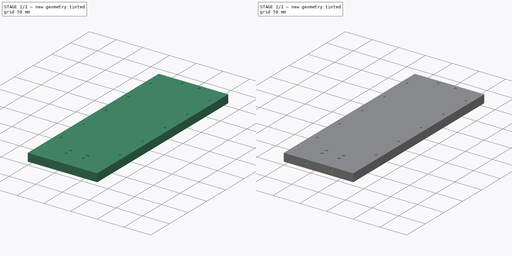
[diagram: build sequence overview — one tinted view per stage of 2, left to right]
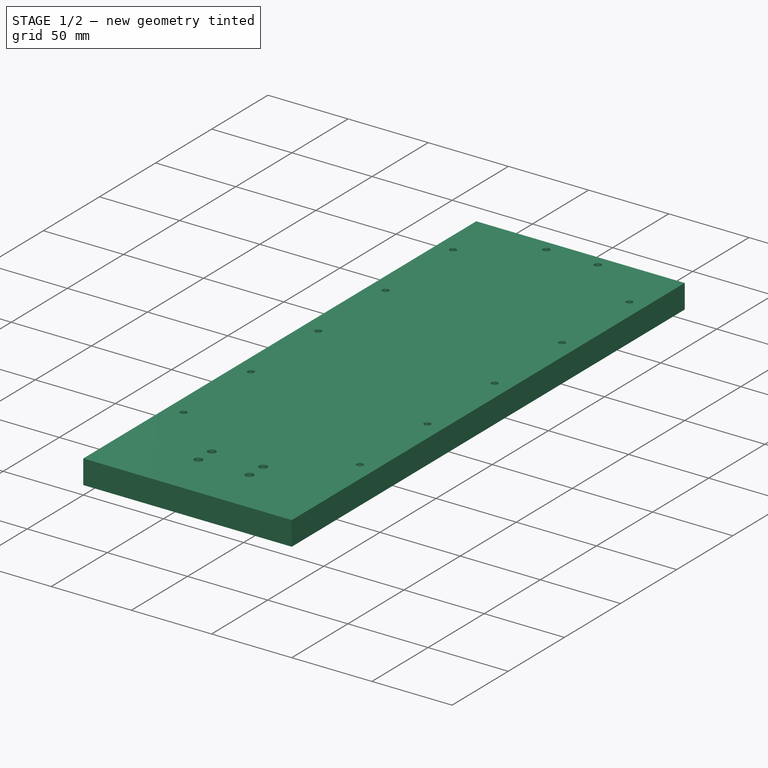
[diagram: stage 1 of 2 — iso view after this stage's code; geometry added in this stage tinted green]
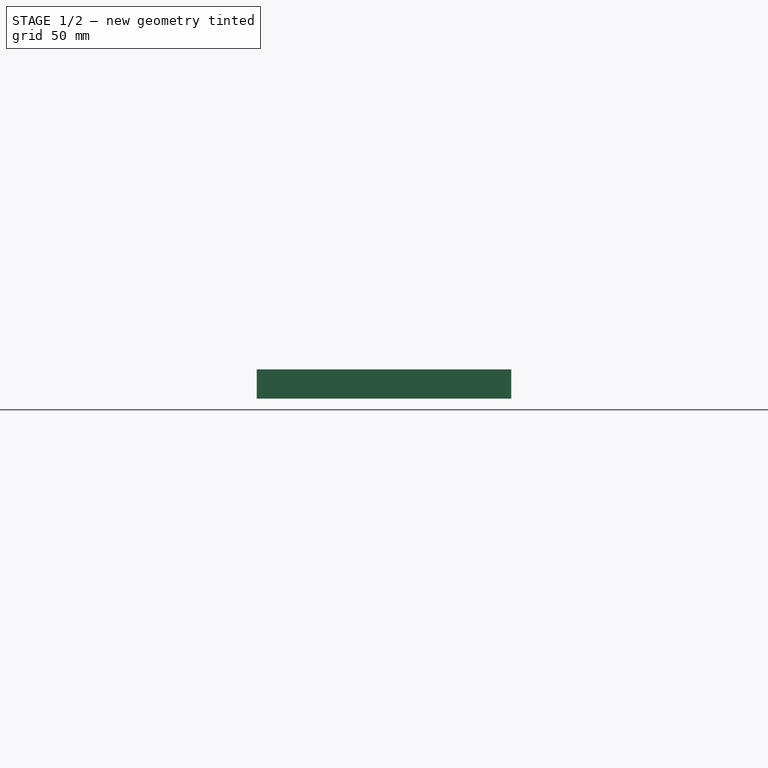
[diagram: stage 1 of 2 — front view after this stage's code; geometry added in this stage tinted green]
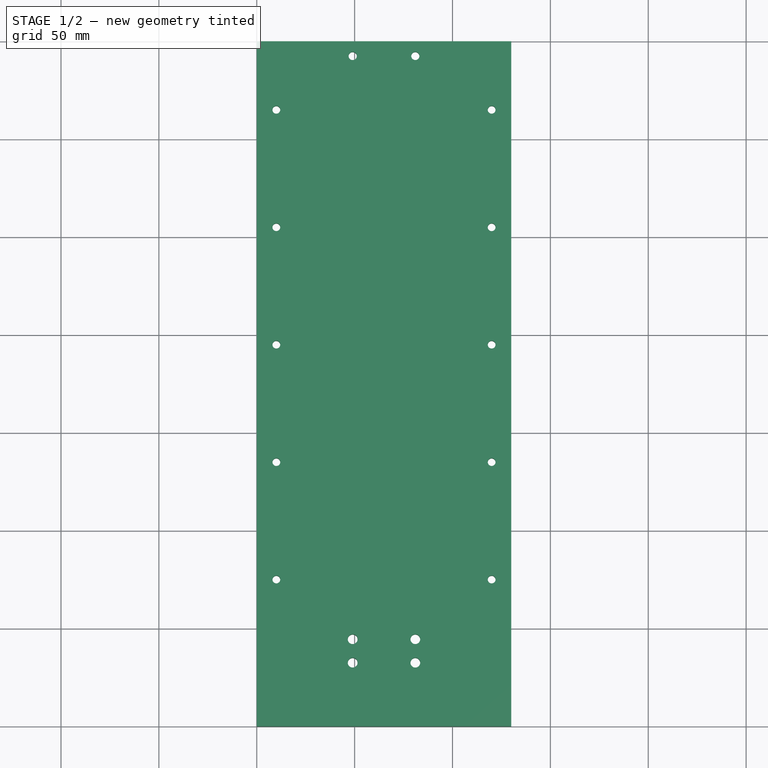
[diagram: stage 1 of 2 — top view after this stage's code; geometry added in this stage tinted green]
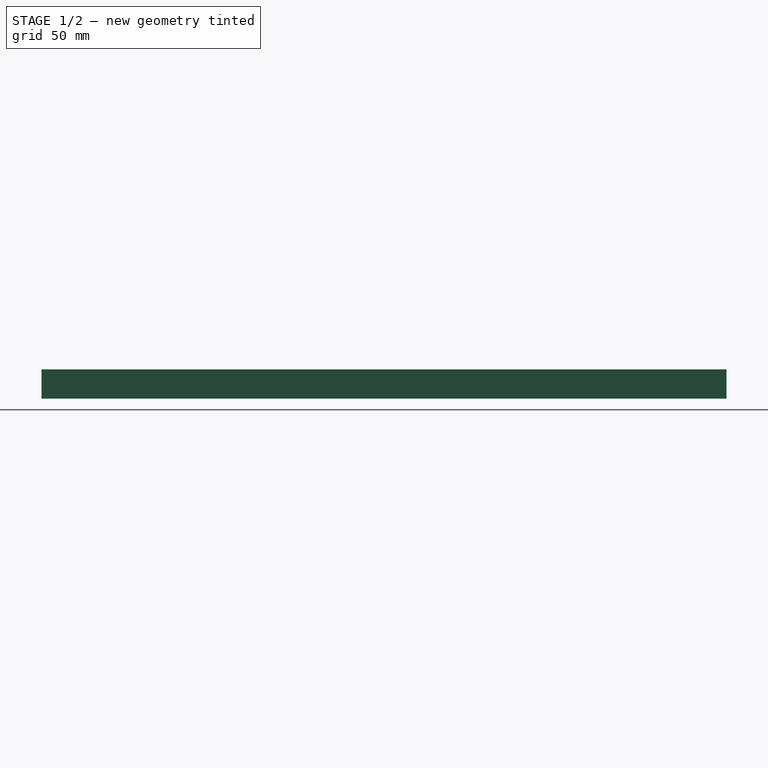
[diagram: stage 1 of 2 — right view after this stage's code; geometry added in this stage tinted green]
FCSTD DOCUMENT  (FreeCAD 0.21R33771 (Git))
Label: PiastraAsseZVerticale
License: All rights reserved
LicenseURL: https://en.wikipedia.org/wiki/All_rights_reserved
objects: Sketcher::SketchObject×2, PartDesign::Pad×1, PartDesign::Pocket×1, PartDesign::Body×1
note: 7 computed .brp shape members not serialized (recipe doc carries the construction recipe); baked Part::Feature solids carry a one-line shape summary decoded from their .brp

FEATURE [Sketcher::SketchObject] Sketch
  FullyConstrained = false
  MapMode = 5
  Support = -> [XY_Plane]
  sketch-geometry (33):
    g0: LineSegment StartX=0 StartY=0 StartZ=0 EndX=130 EndY=0 EndZ=0
    g1: LineSegment StartX=130 StartY=0 StartZ=0 EndX=130 EndY=350 EndZ=0
    g2: LineSegment StartX=130 StartY=350 StartZ=0 EndX=0 EndY=350 EndZ=0
    g3: LineSegment StartX=0 StartY=350 StartZ=0 EndX=0 EndY=0 EndZ=0
    g4: LineSegment StartX=65 StartY=358.613 StartZ=0 EndX=65 EndY=-9.9677 EndZ=0
    g5: LineSegment StartX=33.3247 StartY=342.5 StartZ=0 EndX=86.8501 EndY=342.5 EndZ=0
    g6: LineSegment StartX=40.0947 StartY=44.5 StartZ=0 EndX=82.1046 EndY=44.5 EndZ=0
    g7: LineSegment StartX=42.8025 StartY=32.5 StartZ=0 EndX=77.362 EndY=32.5 EndZ=0
    g8: Circle CenterX=49 CenterY=342.5 CenterZ=0 NormalX=0 NormalY=0 NormalZ=1 AngleXU=0 Radius=2.1
    g9: Circle CenterX=81 CenterY=342.5 CenterZ=0 NormalX=0 NormalY=0 NormalZ=1 AngleXU=0 Radius=2.1
    g10: Circle CenterX=49 CenterY=44.5 CenterZ=0 NormalX=0 NormalY=0 NormalZ=1 AngleXU=0 Radius=2.5
    g11: Circle CenterX=81 CenterY=44.5 CenterZ=0 NormalX=0 NormalY=0 NormalZ=1 AngleXU=0 Radius=2.5
    g12: Circle CenterX=49 CenterY=32.5 CenterZ=0 NormalX=0 NormalY=0 NormalZ=1 AngleXU=0 Radius=2.5
    g13: Circle CenterX=81 CenterY=32.5 CenterZ=0 NormalX=0 NormalY=0 NormalZ=1 AngleXU=0 Radius=2.5
    g14: Circle CenterX=10 CenterY=75 CenterZ=0 NormalX=0 NormalY=0 NormalZ=1 AngleXU=0 Radius=2
    g15: Circle CenterX=10 CenterY=135 CenterZ=0 NormalX=0 NormalY=0 NormalZ=1 AngleXU=0 Radius=2
    g16: LineSegment StartX=10 StartY=75 StartZ=0 EndX=10 EndY=135 EndZ=0
    g17: Circle CenterX=10 CenterY=195 CenterZ=0 NormalX=0 NormalY=0 NormalZ=1 AngleXU=0 Radius=2
    g18: LineSegment StartX=10 StartY=135 StartZ=0 EndX=10 EndY=195 EndZ=0
    g19: Circle CenterX=10 CenterY=255 CenterZ=0 NormalX=0 NormalY=0 NormalZ=1 AngleXU=0 Radius=2
    g20: LineSegment StartX=10 StartY=195 StartZ=0 EndX=10 EndY=255 EndZ=0
    g21: Circle CenterX=10 CenterY=315 CenterZ=0 NormalX=0 NormalY=0 NormalZ=1 AngleXU=0 Radius=2
    g22: LineSegment StartX=10 StartY=255 StartZ=0 EndX=10 EndY=315 EndZ=0
    g23: Circle CenterX=120 CenterY=75 CenterZ=0 NormalX=0 NormalY=0 NormalZ=1 AngleXU=0 Radius=2
    g24: LineSegment StartX=10 StartY=75 StartZ=0 EndX=120 EndY=75 EndZ=0
    g25: Circle CenterX=120 CenterY=135 CenterZ=0 NormalX=0 NormalY=0 NormalZ=1 AngleXU=0 Radius=2
    g26: LineSegment StartX=120 StartY=75 StartZ=0 EndX=120 EndY=135 EndZ=0
    g27: Circle CenterX=120 CenterY=195 CenterZ=0 NormalX=0 NormalY=0 NormalZ=1 AngleXU=0 Radius=2
    g28: LineSegment StartX=120 StartY=135 StartZ=0 EndX=120 EndY=195 EndZ=0
    g29: Circle CenterX=120 CenterY=255 CenterZ=0 NormalX=0 NormalY=0 NormalZ=1 AngleXU=0 Radius=2
    g30: LineSegment StartX=120 StartY=195 StartZ=0 EndX=120 EndY=255 EndZ=0
    g31: Circle CenterX=120 CenterY=315 CenterZ=0 NormalX=0 NormalY=0 NormalZ=1 AngleXU=0 Radius=2
    g32: LineSegment StartX=120 StartY=255 StartZ=0 EndX=120 EndY=315 EndZ=0
  constraints (82):
    c: Coincident(g0,g1)
    c: Coincident(g1,g2)
    c: Coincident(g2,g3)
    c: Coincident(g3,g0)
    c: Horizontal(g0)
    c: Vertical(g1)
    c: Vertical(g3)
    c: Coincident(g0,g-1)
    c: DistanceX(g0,g0) = 130
    c: DistanceY(g3,g3) = 350
    c: Vertical(g4)
    c: DistanceY(g5,g2) = 7.5
    c: DistanceY(g6,g5) = 298
    c: PointOnObject(g8,g5)
    c: PointOnObject(g9,g5)
    c: Radius(g8) = 2.1
    c: Equal(g8,g9)
    c: Symmetric(g8,g9,g4)
    c: Horizontal(g2)
    c: DistanceX(g8,g9) = 32
    c: PointOnObject(g10,g6)
    c: PointOnObject(g11,g6)
    c: PointOnObject(g12,g7)
    c: PointOnObject(g13,g7)
    c: Symmetric(g10,g11,g4)
    c: Symmetric(g12,g13,g4)
    c: DistanceY(g7,g6) = 12
    c: DistanceX(g10,g11) = 32
    c: Vertical(g10,g12)
    c: DistanceX(g0,g4) = 65
    c: Radius(g10) = 2.5
    c: Equal(g10,g11)
    c: Equal(g11,g12)
    c: Equal(g12,g13)
    c: Radius(g14) = 2
    c: DistanceY(g0,g14) = 75
    c: DistanceX(g14,g4) = 55
    c: Radius(g15) = 2
    c: Coincident(g14,g16)
    c: Coincident(g15,g16)
    c: Distance(g16) = 60
    c: Angle(g16) = 1.5708
    c: Radius(g17) = 2
    c: Coincident(g15,g18)
    c: Coincident(g17,g18)
    c: Equal(g16,g18)
    c: Parallel(g18,g16)
    c: Radius(g19) = 2
    c: Coincident(g17,g20)
    c: Coincident(g19,g20)
    c: Equal(g16,g20)
    c: Parallel(g20,g16)
    c: Radius(g21) = 2
    c: Coincident(g19,g22)
    c: Coincident(g21,g22)
    c: Equal(g16,g22)
    c: Parallel(g22,g16)
    c: Radius(g23) = 2
    c: Coincident(g14,g24)
    c: Coincident(g23,g24)
    c: Distance(g24) = 110
    c: Perpendicular(g24,g16)
    c: Radius(g25) = 2
    c: Coincident(g23,g26)
    c: Coincident(g25,g26)
    c: Equal(g16,g26)
    c: Parallel(g26,g16)
    c: Radius(g27) = 2
    c: Coincident(g25,g28)
    c: Coincident(g27,g28)
    c: Equal(g16,g28)
    c: Parallel(g28,g16)
    c: Radius(g29) = 2
    c: Coincident(g27,g30)
    c: Coincident(g29,g30)
    c: Equal(g16,g30)
    c: Parallel(g30,g16)
    c: Radius(g31) = 2
    c: Coincident(g29,g32)
    c: Coincident(g31,g32)
    c: Equal(g16,g32)
    c: Parallel(g32,g16)
FEATURE [PartDesign::Pad] Pad
  Direction = (0,0,1)
  Length = 15
  Length2 = 10
  Profile = -> Sketch
  ReferenceAxis = -> Sketch [N_Axis]
  Type = 0
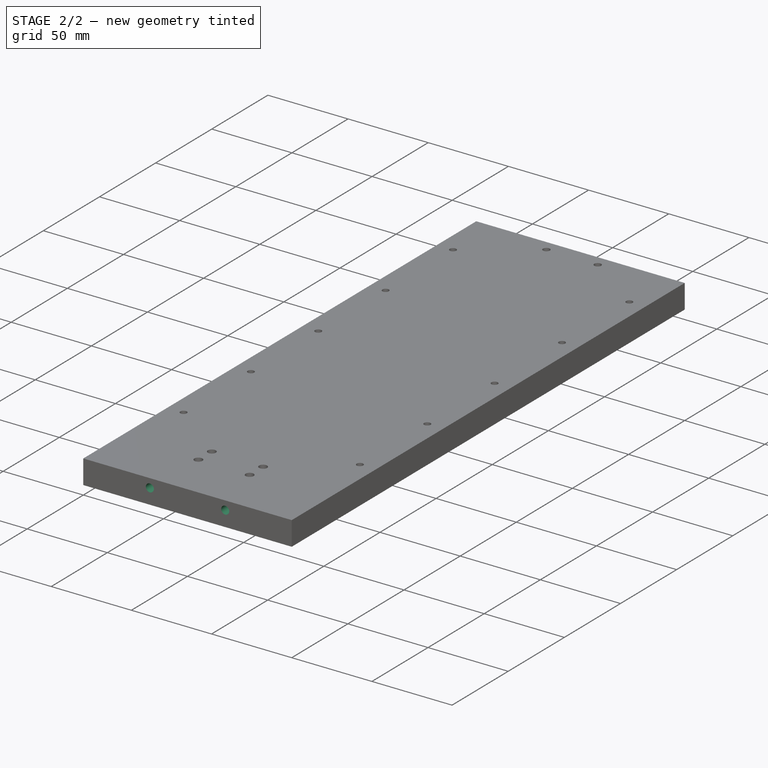
[diagram: stage 2 of 2 — iso view after this stage's code; geometry added in this stage tinted green]
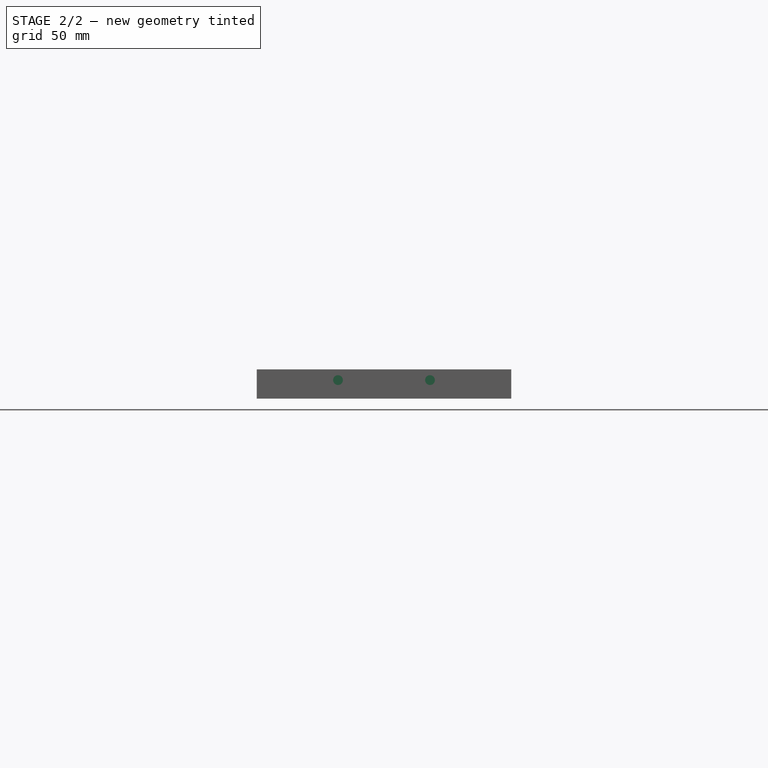
[diagram: stage 2 of 2 — front view after this stage's code; geometry added in this stage tinted green]
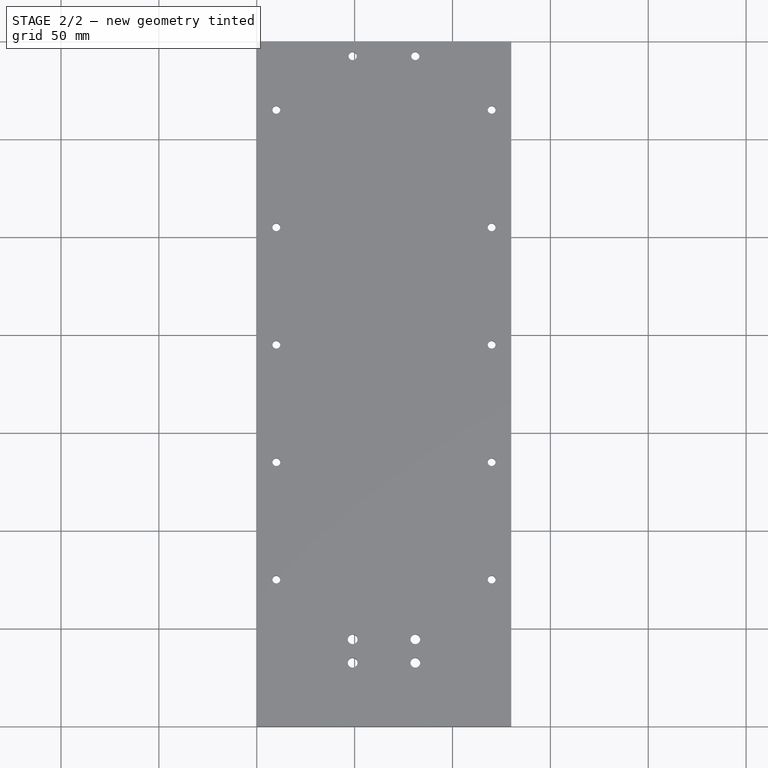
[diagram: stage 2 of 2 — top view after this stage's code; geometry added in this stage tinted green]
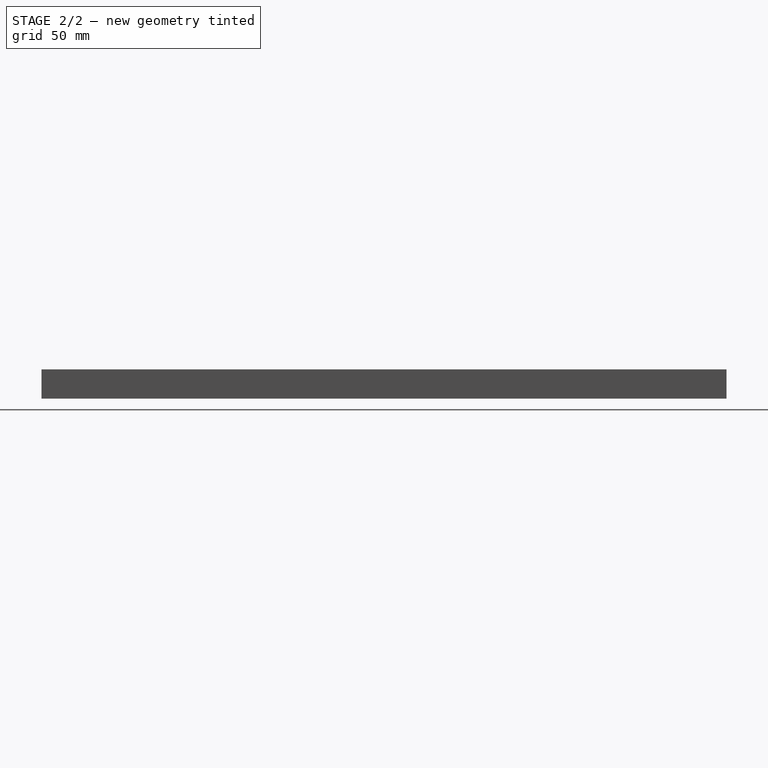
[diagram: stage 2 of 2 — right view after this stage's code; geometry added in this stage tinted green]
FEATURE [Sketcher::SketchObject] Sketch001
  FullyConstrained = false
  MapMode = 5
  Placement = pos=(0,0,0) rot=(1,0,0;1.5708rad)
  Support = -> [Pad]
  sketch-geometry (4):
    g0: LineSegment StartX=13.02 StartY=9.5 StartZ=0 EndX=113.104 EndY=9.5 EndZ=0
    g1: Circle CenterX=41.5 CenterY=9.5 CenterZ=0 NormalX=0 NormalY=0 NormalZ=1 AngleXU=0 Radius=2.5
    g2: LineSegment StartX=65 StartY=48.5766 StartZ=0 EndX=65 EndY=2.09633 EndZ=0
    g3: Circle CenterX=88.5 CenterY=9.5 CenterZ=0 NormalX=0 NormalY=0 NormalZ=1 AngleXU=0 Radius=2.5
  constraints (9):
    c: PointOnObject(g1,g0)
    c: Vertical(g2)
    c: PointOnObject(g3,g0)
    c: Symmetric(g1,g3,g2)
    c: DistanceX(g1,g3) = 47
    c: Radius(g1) = 2.5
    c: Equal(g1,g3)
    c: DistanceX(g-1,g2) = 65
    c: DistanceY(g-1,g0) = 9.5
FEATURE [PartDesign::Pocket] Pocket
  BaseFeature = -> Pad
  Direction = (0,1,-2e-16)
  Length = 10
  Length2 = 5
  Profile = -> Sketch001
  ReferenceAxis = -> Sketch001 [N_Axis]
  Type = 0
FEATURE [PartDesign::Body] Body
  Group = -> [Sketch,Pad,Sketch001,Pocket]
  Origin = -> Origin
  Tip = -> Pocket
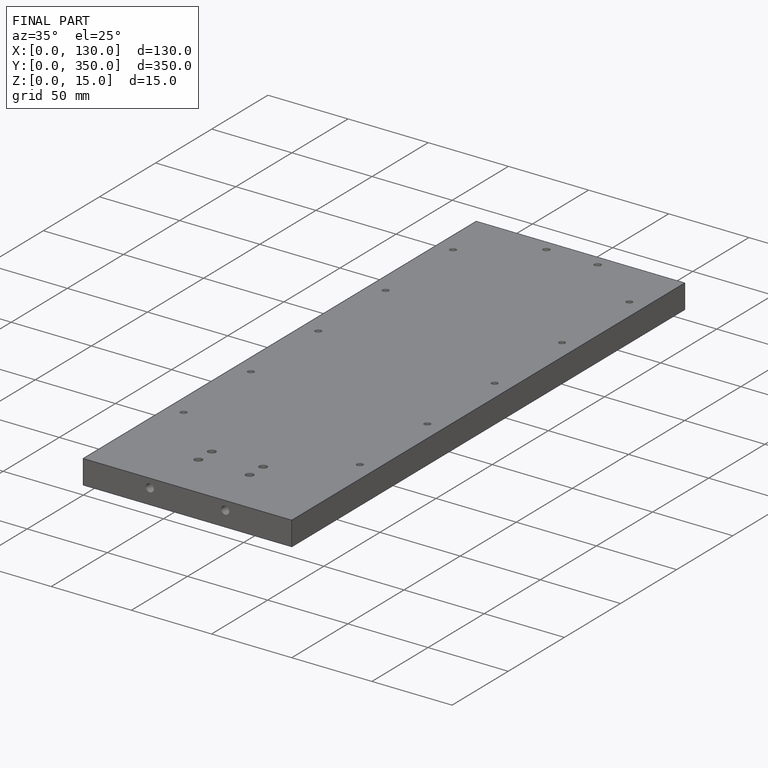
[diagram: finished part — iso view with bounding-box wireframe]
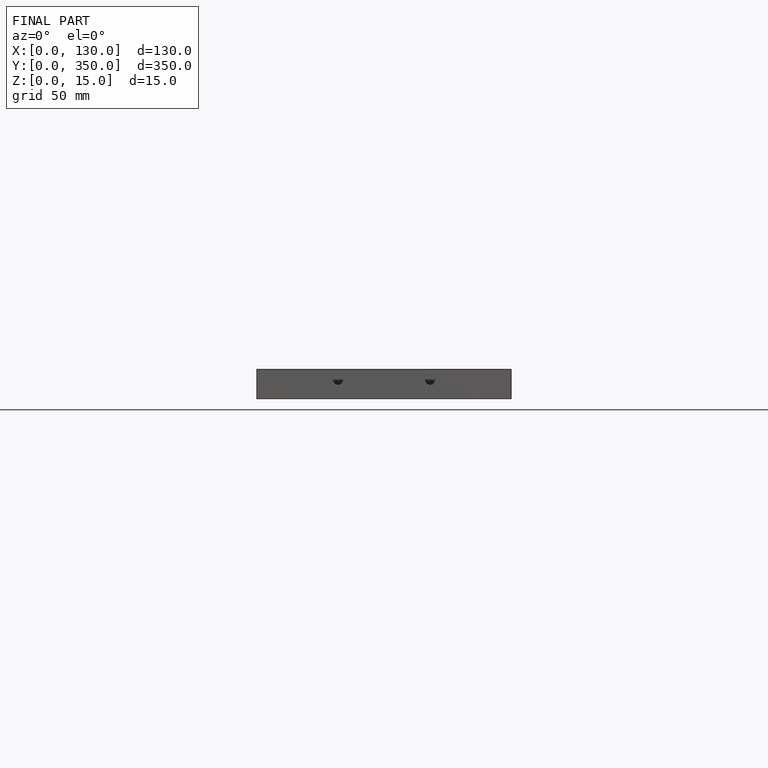
[diagram: finished part — front view with bounding-box wireframe]
